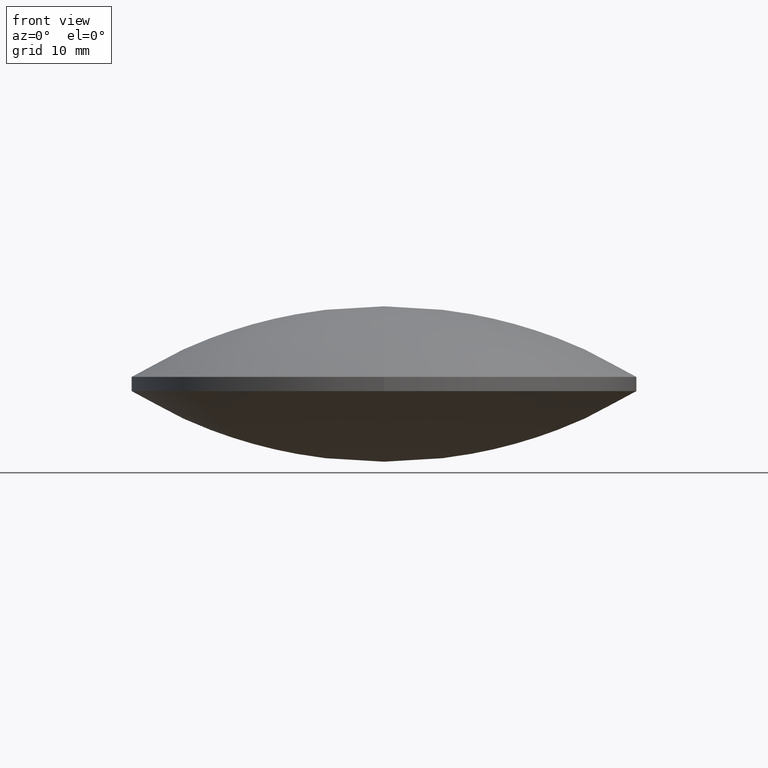
[diagram: clean part render]
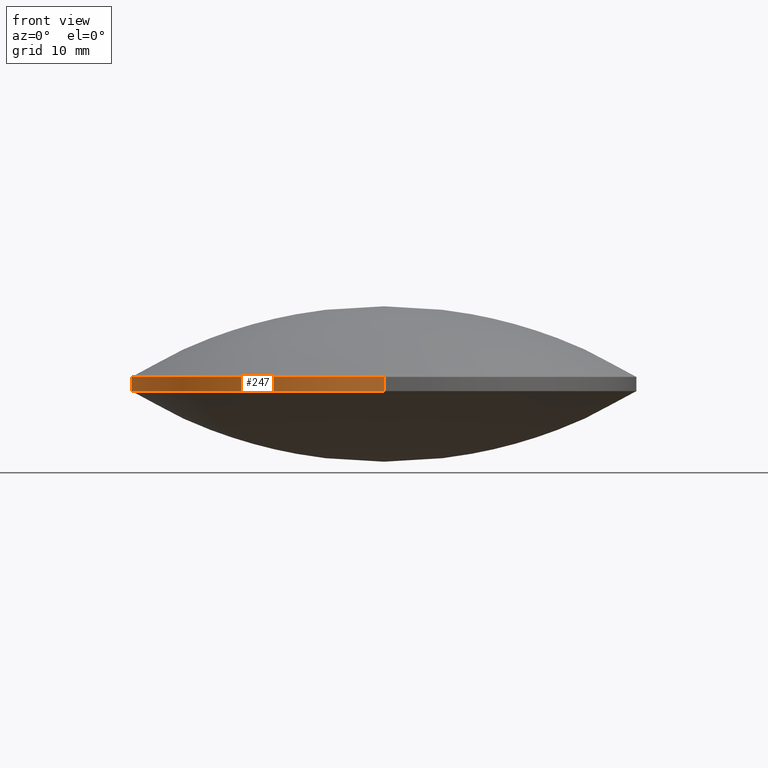
[diagram: same view with one face highlighted and labeled with its STEP entity id]
A machine part, front view. The second image highlights one B-rep face of the part: STEP entity #247.
In plain terms, the highlighted cylindrical surface (partial cylindrical patch) has radius 25.4 mm, axis along (-0, -0, 1).
Its self-contained STEP definition (entity closure, byte-faithful):
#15 = DIRECTION ( 'NONE',  ( -1.797079892071900000E-031, -9.344115438189380100E-016, 1.000000000000000000 ) ) ;
#20 = VECTOR ( 'NONE', #15, 1000.000000000000000 ) ;
#27 = DIRECTION ( 'NONE',  ( 1.797079892071900000E-031, 9.344115438189380100E-016, -1.000000000000000000 ) ) ;
#31 = VERTEX_POINT ( 'NONE', #117 ) ;
#37 = EDGE_CURVE ( 'NONE', #140, #131, #106, .T. ) ;
#48 = CARTESIAN_POINT ( 'NONE',  ( 9.992007221626412800E-016, -25.39999999999999500, 7.087108748622016600 ) ) ;
#51 = AXIS2_PLACEMENT_3D ( 'NONE', #253, #254, #123 ) ;
#78 = DIRECTION ( 'NONE',  ( 0.0000000000000000000, -1.000000000000000000, -9.219986978616888100E-016 ) ) ;
#87 = DIRECTION ( 'NONE',  ( 1.797079892071900000E-031, 9.344115438189380100E-016, -1.000000000000000000 ) ) ;
#89 = LINE ( 'NONE', #48, #220 ) ;
#97 = CARTESIAN_POINT ( 'NONE',  ( 9.992007221626410800E-016, -25.39999999999999500, 8.512891251377935100 ) ) ;
#106 = LINE ( 'NONE', #151, #20 ) ;
#107 = VERTEX_POINT ( 'NONE', #97 ) ;
#115 = FACE_OUTER_BOUND ( 'NONE', #234, .T. ) ;
#117 = CARTESIAN_POINT ( 'NONE',  ( 9.992007221626412800E-016, -25.39999999999999500, 7.087108748622016600 ) ) ;
#123 = DIRECTION ( 'NONE',  ( 0.0000000000000000000, -1.000000000000000000, -9.219986978616888100E-016 ) ) ;
#124 = CARTESIAN_POINT ( 'NONE',  ( 4.109803591996917800E-015, 25.40000000000000200, 7.087108748622063600 ) ) ;
#126 = AXIS2_PLACEMENT_3D ( 'NONE', #179, #27, #78 ) ;
#131 = VERTEX_POINT ( 'NONE', #255 ) ;
#134 = ORIENTED_EDGE ( 'NONE', *, *, #172, .T. ) ;
#140 = VERTEX_POINT ( 'NONE', #124 ) ;
#147 = ORIENTED_EDGE ( 'NONE', *, *, #37, .F. ) ;
#151 = CARTESIAN_POINT ( 'NONE',  ( 4.109803591996917800E-015, 25.40000000000000200, 7.087108748622063600 ) ) ;
#172 = EDGE_CURVE ( 'NONE', #107, #131, #209, .T. ) ;
#175 = CIRCLE ( 'NONE', #126, 25.39999999999999900 ) ;
#179 = CARTESIAN_POINT ( 'NONE',  ( 9.992007221626412800E-016, 4.884981308350691100E-015, 7.087108748622040500 ) ) ;
#198 = EDGE_CURVE ( 'NONE', #31, #140, #175, .T. ) ;
#209 = CIRCLE ( 'NONE', #232, 25.39999999999999900 ) ;
#212 = CARTESIAN_POINT ( 'NONE',  ( 9.992007221626410800E-016, 3.552713678800502500E-015, 8.512891251377960000 ) ) ;
#214 = CYLINDRICAL_SURFACE ( 'NONE', #51, 25.39999999999999900 ) ;
#215 = ORIENTED_EDGE ( 'NONE', *, *, #226, .T. ) ;
#220 = VECTOR ( 'NONE', #240, 1000.000000000000000 ) ;
#226 = EDGE_CURVE ( 'NONE', #31, #107, #89, .T. ) ;
#228 = DIRECTION ( 'NONE',  ( 0.0000000000000000000, -1.000000000000000000, -9.561467977824922300E-016 ) ) ;
#232 = AXIS2_PLACEMENT_3D ( 'NONE', #212, #87, #228 ) ;
#233 = ORIENTED_EDGE ( 'NONE', *, *, #198, .F. ) ;
#234 = EDGE_LOOP ( 'NONE', ( #147, #233, #215, #134 ) ) ;
#240 = DIRECTION ( 'NONE',  ( -1.797079892071900000E-031, -9.344115438189380100E-016, 1.000000000000000000 ) ) ;
#247 = ADVANCED_FACE ( 'NONE', ( #115 ), #214, .T. ) ;
#253 = CARTESIAN_POINT ( 'NONE',  ( 9.992007221626412800E-016, 4.884981308350691100E-015, 7.087108748622040500 ) ) ;
#254 = DIRECTION ( 'NONE',  ( -1.797079892071900000E-031, -9.344115438189380100E-016, 1.000000000000000000 ) ) ;
#255 = CARTESIAN_POINT ( 'NONE',  ( 4.109803591996917800E-015, 25.40000000000000200, 8.512891251377984900 ) ) ;